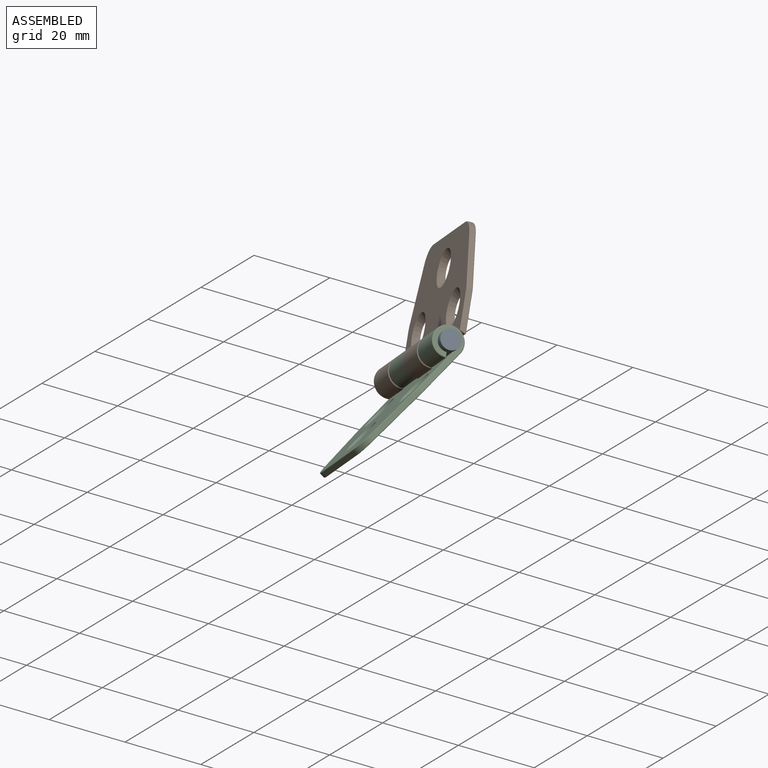
[diagram: assembled view]
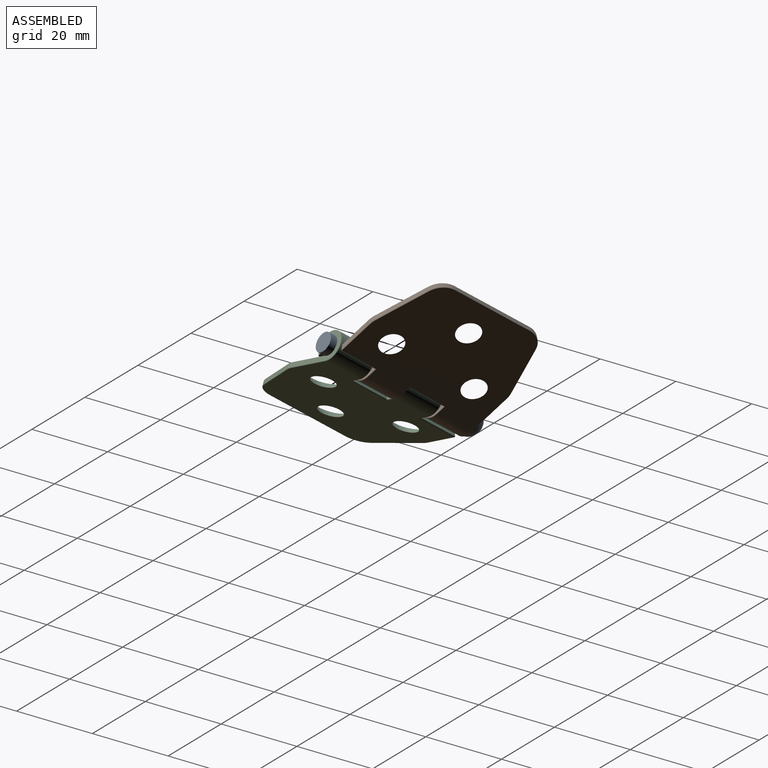
[diagram: assembled view, second angle]
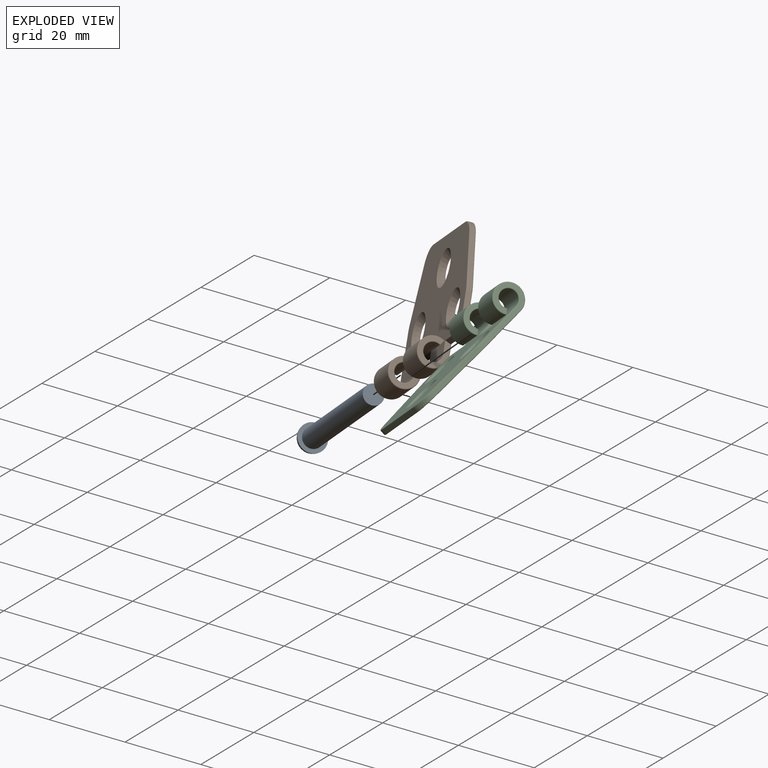
[diagram: exploded view]
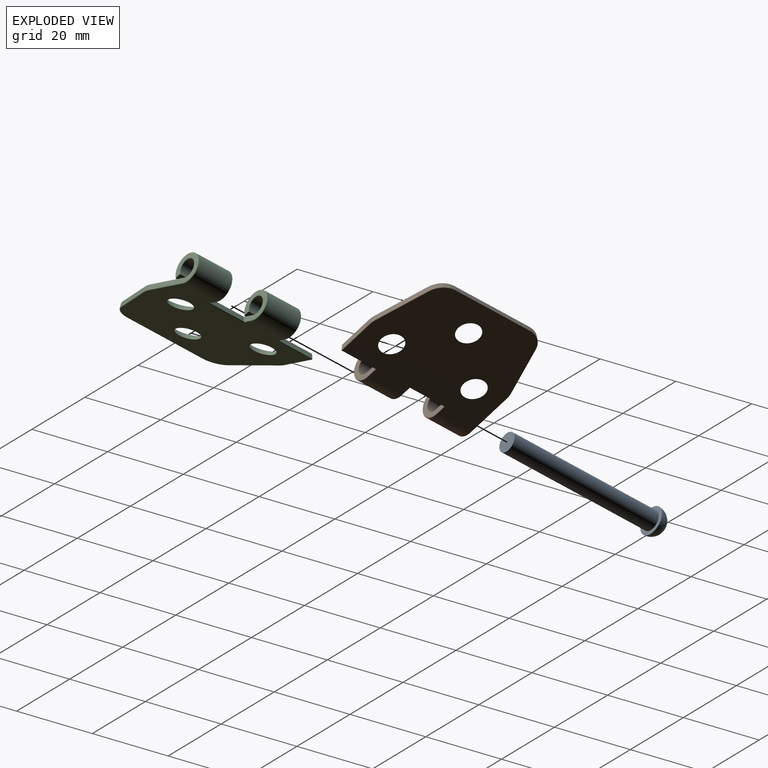
[diagram: exploded view, second angle]
ASSEMBLY  parts=3 mates=2
PART A: 4 faces, bbox 45.5x7x7 mm
  f0: cylinder r=2.48mm len=42mm, axis (-1,0,0), area 653.1mm2, adj f1,f3
  f1: plane 4.95x4.95mm, normal (1,0,0), area 19.2mm2, adj f0
  f2: sphere r=3.5mm, area 77mm2, adj f3
  f3: plane 7x7mm, normal (1,0,0), area 19.2mm2, adj f0,f2
PART B: 64 faces, bbox 40.1x34.5x8.1 mm
  f0: cylinder r=2.25mm len=9.6mm, axis (-1,0,0), area 114mm2, adj f2,f3,f32,f54
  f1: cylinder r=3.75mm len=9.6mm, axis (-1,0,0), area 190.8mm2, adj f2,f4,f36,f59
  f2: plane 10x1.23mm, normal (0,0.58,-0.81), area 15mm2, adj f0,f1,f17,f20,f32,f36,f54,f59
  f3: plane 39.6x29.8mm, normal (0,0,1), area 827.3mm2, adj f0,f7,f13,f14,f15,f26,f27,f28
  f4: plane 39.6x29.8mm, normal (0,0,-1), area 943mm2, adj f1,f8,f13,f14,f15,f39,f41,f44
  f5: plane 21.75x1.1mm, normal (0,-1,0), area 23.9mm2, adj f21,f24,f30,f48
  f6: plane 9.29x1.1mm, normal (-1,0,0), area 9.9mm2, adj f22,f38,f42,f44
  f7: cylinder r=2.25mm len=9.6mm, axis (-1,0,0), area 114mm2, adj f3,f9,f25,f57
  f8: cylinder r=3.75mm len=9.6mm, axis (-1,0,0), area 190.8mm2, adj f4,f9,f53,f62
  f9: plane 10x1.23mm, normal (0,0.58,-0.81), area 15mm2, adj f7,f8,f10,f19,f25,f53,f57,f62
  f10: plane 15.62x7.1mm, normal (1,0,0), area 30.7mm2, adj f9,f23,f25,f26,f52,f53
  f11: plane 12.93x4.13mm, normal (0.95,-0.3,0), area 14.9mm2, adj f23,f24,f28,f50
  f12: plane 12.93x4.13mm, normal (-0.95,-0.3,0), area 14.9mm2, adj f21,f22,f33,f46
  f13: cone r=2.2mm half-angle=45deg, axis (0,0,1), area 49.7mm2, adj f3,f4
  f14: cone r=2.2mm half-angle=45deg, axis (0,0,1), area 49.7mm2, adj f3,f4
  f15: cone r=2.2mm half-angle=45deg, axis (0,0,1), area 49.7mm2, adj f3,f4
  f16: plane 9.82x1.1mm, normal (0,0.91,0.41), area 11.8mm2, adj f17,f34,f37,f41,f42
  f17: plane 7.1x7.1mm, normal (-1,0,0), area 20.6mm2, adj f2,f16,f32,f34,f36,f39,f41
  f18: plane 10.04x1.1mm, normal (0,0.91,0.41), area 12.1mm2, adj f19,f20,f55,f56,f58,f61
  f19: plane 7.1x7.1mm, normal (-1,0,0), area 20.6mm2, adj f9,f18,f57,f58,f61,f62,f63
  f20: plane 7.1x7.1mm, normal (1,0,0), area 20.6mm2, adj f2,f18,f54,f55,f59,f60,f61
  f21: cylinder r=5mm len=4.76mm, axis (0,0,-1), area 6.9mm2, adj f5,f12,f31,f47
  f22: cylinder r=5mm len=1.52mm, axis (0,0,1), area 1.7mm2, adj f6,f12,f35,f45
  f23: cylinder r=5mm len=1.52mm, axis (0,0,-1), area 1.7mm2, adj f10,f11,f27,f51
  f24: cylinder r=5mm len=4.76mm, axis (0,0,1), area 6.9mm2, adj f5,f11,f29,f49
  f25: torus R=2.45mm, axis (1,0,0), area 3.9mm2, adj f7,f9,f10,f26
  f26: cylinder r=0.2mm len=12.07mm, axis (0,1,0), area 3.8mm2, adj f3,f10,f25,f27
  f27: torus R=4.8mm, axis (0,0,1), area 0.5mm2, adj f3,f23,f26,f28
  f28: cylinder r=0.2mm len=12.99mm, axis (0.3,0.95,0), area 4.3mm2, adj f3,f11,f27,f29
  f29: torus R=4.8mm, axis (0,0,1), area 2mm2, adj f3,f24,f28,f30
  f30: cylinder r=0.2mm len=21.75mm, axis (-1,0,0), area 6.8mm2, adj f3,f5,f29,f31
  f31: torus R=4.8mm, axis (0,0,1), area 2mm2, adj f3,f21,f30,f33
  f32: torus R=2.45mm, axis (1,0,0), area 3.9mm2, adj f0,f2,f17,f34
  f33: cylinder r=0.2mm len=12.99mm, axis (0.3,-0.95,0), area 4.3mm2, adj f3,f12,f31,f35
  f34: cylinder r=0.2mm len=3.28mm, axis (0,-1,0), area 1mm2, adj f3,f16,f17,f32,f37
  f35: torus R=4.8mm, axis (0,0,1), area 0.5mm2, adj f3,f22,f33,f38
  f36: torus R=3.55mm, axis (1,0,0), area 6.1mm2, adj f1,f2,f17,f39
  f37: cylinder r=0.2mm len=10mm, axis (-1,0,0), area 2.3mm2, adj f3,f16,f34,f40
  f38: cylinder r=0.2mm len=8.79mm, axis (0,-1,0), area 2.8mm2, adj f3,f6,f35,f40
  f39: cylinder r=0.2mm len=2.78mm, axis (0,1,0), area 0.8mm2, adj f4,f17,f36,f41
  f40: sphere r=0.2mm, area 0mm2, adj f37,f38,f42
  f41: cylinder r=0.2mm len=10mm, axis (1,0,0), area 3.9mm2, adj f4,f16,f17,f39,f43
  f42: cylinder r=0.2mm len=1.18mm, axis (0,-0.41,0.91), area 0.4mm2, adj f6,f16,f40,f43
  f43: sphere r=0.2mm, area 0.1mm2, adj f41,f42,f44
  f44: cylinder r=0.2mm len=9.29mm, axis (0,1,0), area 2.9mm2, adj f4,f6,f43,f45
  f45: torus R=4.8mm, axis (0,0,1), area 0.5mm2, adj f4,f22,f44,f46
  f46: cylinder r=0.2mm len=12.99mm, axis (-0.3,0.95,0), area 4.3mm2, adj f4,f12,f45,f47
  f47: torus R=4.8mm, axis (0,0,1), area 2mm2, adj f4,f21,f46,f48
  f48: cylinder r=0.2mm len=21.75mm, axis (1,0,0), area 6.8mm2, adj f4,f5,f47,f49
  f49: torus R=4.8mm, axis (0,0,1), area 2mm2, adj f4,f24,f48,f50
  f50: cylinder r=0.2mm len=12.99mm, axis (-0.3,-0.95,0), area 4.3mm2, adj f4,f11,f49,f51
  f51: torus R=4.8mm, axis (0,0,1), area 0.5mm2, adj f4,f23,f50,f52
  f52: cylinder r=0.2mm len=12.07mm, axis (0,-1,0), area 3.8mm2, adj f4,f10,f51,f53
  f53: torus R=3.55mm, axis (1,0,0), area 6.1mm2, adj f8,f9,f10,f52
  f54: torus R=2.45mm, axis (1,0,0), area 3.9mm2, adj f0,f2,f20,f55
  f55: cylinder r=0.2mm len=3.28mm, axis (0,1,0), area 1mm2, adj f3,f18,f20,f54,f56
  f56: cylinder r=0.2mm len=10.4mm, axis (-1,0,0), area 2.3mm2, adj f3,f18,f55,f58
  f57: torus R=2.45mm, axis (1,0,0), area 3.9mm2, adj f7,f9,f19,f58
  f58: cylinder r=0.2mm len=3.28mm, axis (0,-1,0), area 1mm2, adj f3,f18,f19,f56,f57
  f59: torus R=3.55mm, axis (1,0,0), area 6.1mm2, adj f1,f2,f20,f60
  f60: cylinder r=0.2mm len=2.78mm, axis (0,-1,0), area 0.8mm2, adj f4,f20,f59,f61
  f61: cylinder r=0.2mm len=10.4mm, axis (1,0,0), area 4mm2, adj f4,f18,f19,f20,f60,f63
  f62: torus R=3.55mm, axis (1,0,0), area 6.1mm2, adj f8,f9,f19,f63
  f63: cylinder r=0.2mm len=2.78mm, axis (0,1,0), area 0.8mm2, adj f4,f19,f61,f62
PART C: same geometry as B
PLACE A rot(axis=(0.91,-0.33,0.25),149.1deg) t=(-33.63,59.5,-43.28)mm
PLACE B rot(axis=(-0.4,-0.43,0.81),173.8deg) t=(-7.18,52.87,-11.35)mm
PLACE C rot(axis=(0.41,-0.83,-0.38),51.7deg) t=(-33.04,48.84,-51.34)mm
MATE fastened A.f0 <-> B.f0  axis (-0.68,0.43,-0.59) through (-33.63,59.5,-43.28)mm
MATE revolute B.f0 <-> C.f0  axis (0.68,-0.43,0.59) through (-19.99,50.93,-31.44)mm
